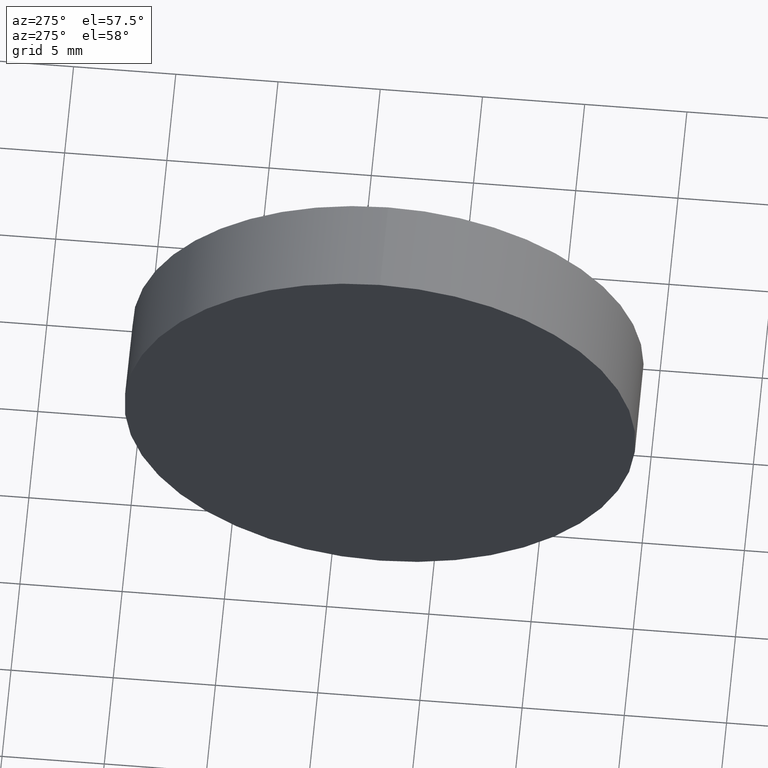
[diagram: clean part render]
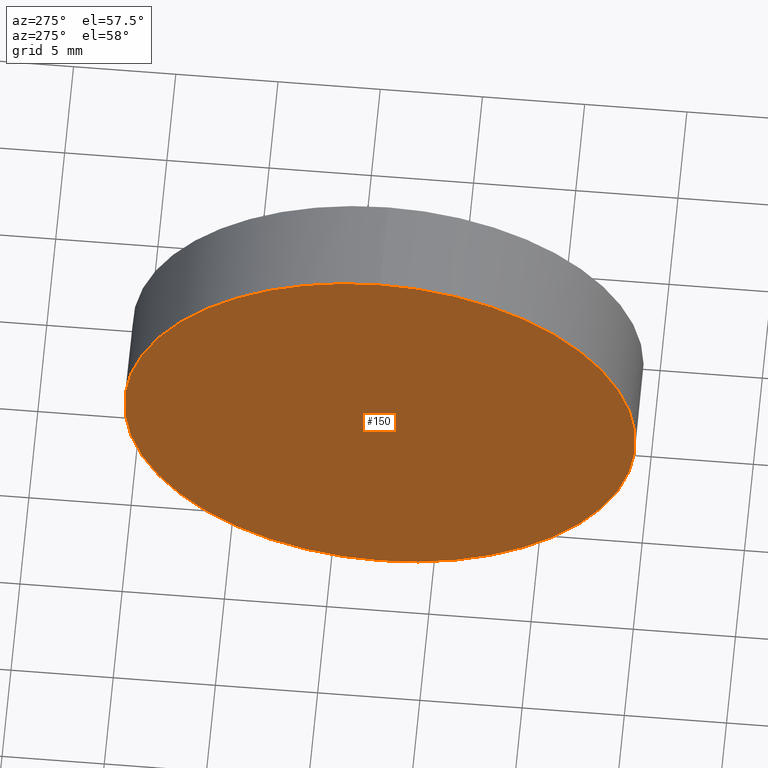
[diagram: same view with one face highlighted and labeled with its STEP entity id]
A machine part, auxiliary view. The second image highlights one B-rep face of the part: STEP entity #150.
In plain terms, the highlighted planar face has unit normal (1, 0, 0).
Its self-contained STEP definition (entity closure, byte-faithful):
#5 = VERTEX_POINT ( 'NONE', #19 ) ;
#12 = CARTESIAN_POINT ( 'NONE',  ( 57.53233705252611700, 32.61076812922678400, 0.0000000000000000000 ) ) ;
#13 = CARTESIAN_POINT ( 'NONE',  ( 57.53233705252611700, 32.61076812922678400, 0.0000000000000000000 ) ) ;
#14 = DIRECTION ( 'NONE',  ( -1.000000000000000000, -0.0000000000000000000, -0.0000000000000000000 ) ) ;
#19 = CARTESIAN_POINT ( 'NONE',  ( 57.53233705252611700, 32.61076812922678400, 12.49999999999999600 ) ) ;
#39 = AXIS2_PLACEMENT_3D ( 'NONE', #13, #14, #180 ) ;
#49 = CIRCLE ( 'NONE', #131, 12.49999999999999600 ) ;
#50 = ORIENTED_EDGE ( 'NONE', *, *, #120, .T. ) ;
#55 = EDGE_LOOP ( 'NONE', ( #186, #50 ) ) ;
#56 = CARTESIAN_POINT ( 'NONE',  ( 57.53233705252611700, 32.61076812922678400, 0.0000000000000000000 ) ) ;
#57 = DIRECTION ( 'NONE',  ( 1.000000000000000000, 0.0000000000000000000, 0.0000000000000000000 ) ) ;
#71 = AXIS2_PLACEMENT_3D ( 'NONE', #56, #57, #123 ) ;
#79 = FACE_OUTER_BOUND ( 'NONE', #55, .T. ) ;
#85 = CARTESIAN_POINT ( 'NONE',  ( 57.53233705252611700, 32.61076812922678400, -12.49999999999999600 ) ) ;
#88 = VERTEX_POINT ( 'NONE', #85 ) ;
#114 = CIRCLE ( 'NONE', #39, 12.49999999999999600 ) ;
#120 = EDGE_CURVE ( 'NONE', #88, #5, #114, .T. ) ;
#123 = DIRECTION ( 'NONE',  ( 0.0000000000000000000, 0.0000000000000000000, -1.000000000000000000 ) ) ;
#126 = DIRECTION ( 'NONE',  ( -1.000000000000000000, -0.0000000000000000000, -0.0000000000000000000 ) ) ;
#127 = EDGE_CURVE ( 'NONE', #5, #88, #49, .T. ) ;
#131 = AXIS2_PLACEMENT_3D ( 'NONE', #12, #126, #151 ) ;
#150 = ADVANCED_FACE ( 'NONE', ( #79 ), #168, .F. ) ;
#151 = DIRECTION ( 'NONE',  ( 0.0000000000000000000, 0.0000000000000000000, 1.000000000000000000 ) ) ;
#168 = PLANE ( 'NONE',  #71 ) ;
#180 = DIRECTION ( 'NONE',  ( 0.0000000000000000000, 0.0000000000000000000, 1.000000000000000000 ) ) ;
#186 = ORIENTED_EDGE ( 'NONE', *, *, #127, .T. ) ;